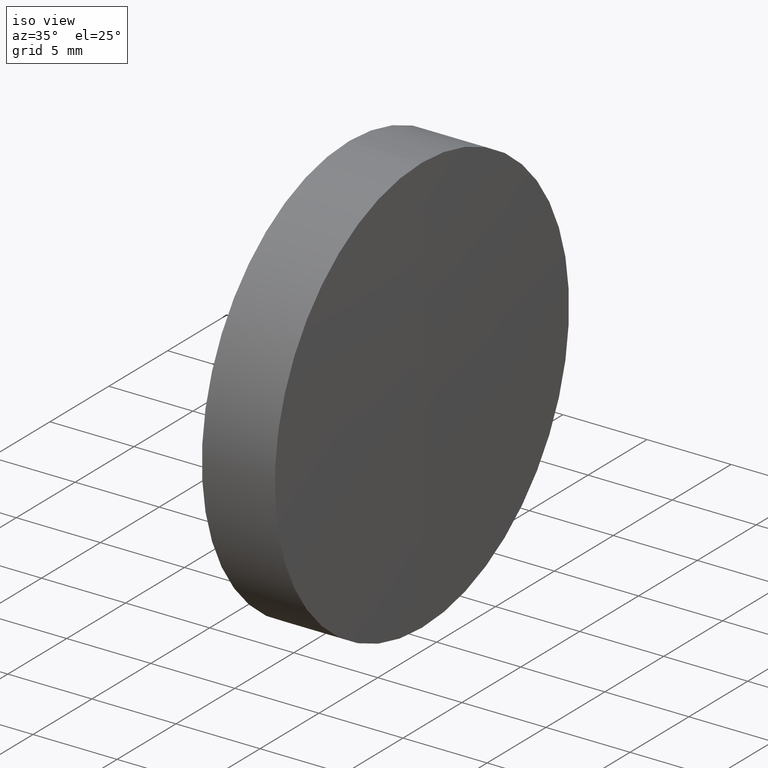
[diagram: clean part render]
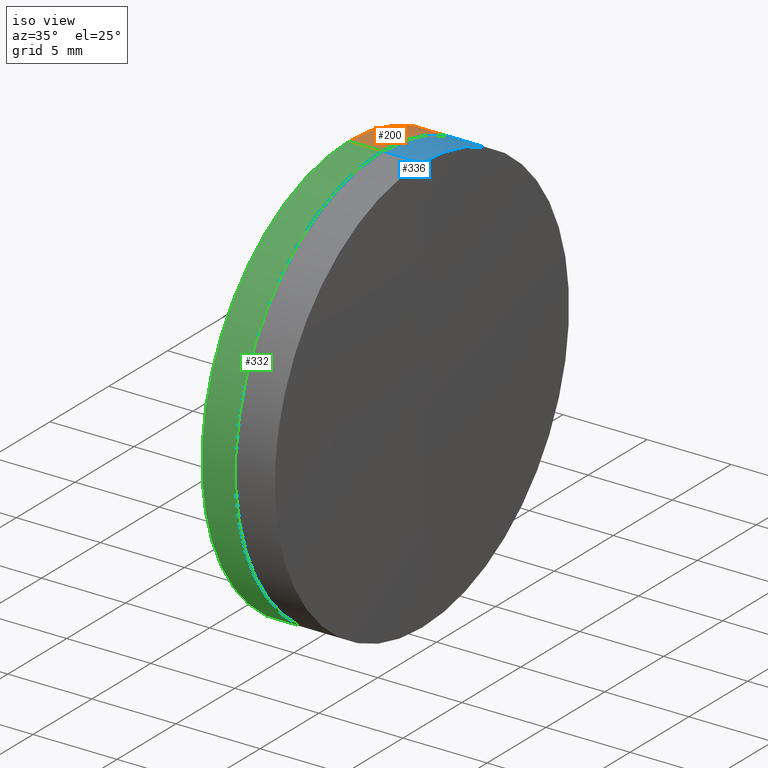
[diagram: same view with three faces highlighted in distinct colors, each labeled with its STEP entity id]
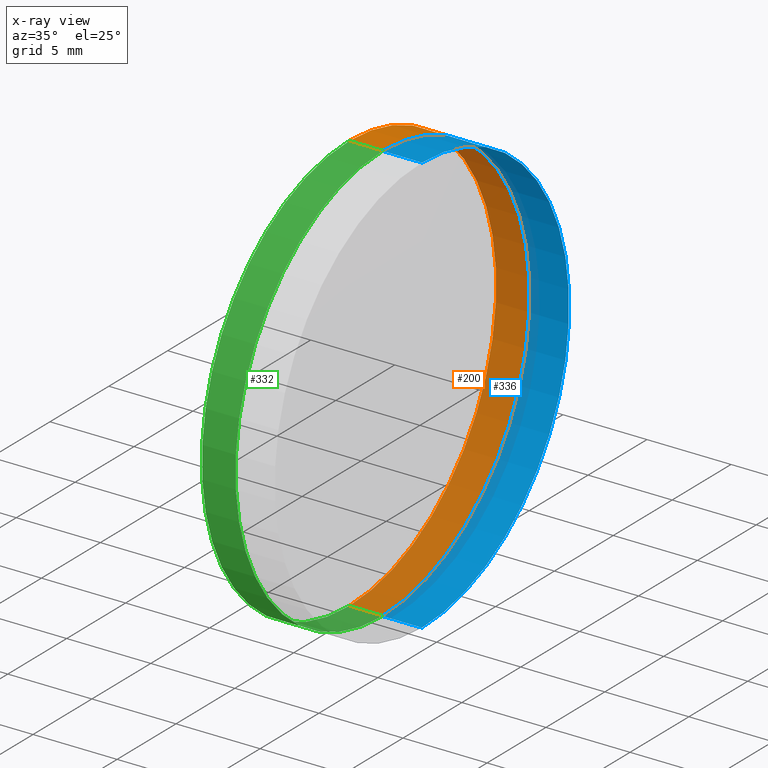
[diagram: x-ray of the same camera — body ghosted, the three highlighted faces saturated]
A machine part, iso view with three faces highlighted in distinct colors.
The next image is the same camera in x-ray (body ghosted, the three faces saturated) — at least one of them is partly hidden behind the body in this view.
Their STEP definitions:

[orange] entity #200 — the highlighted cylindrical surface (partial cylindrical patch) has radius 12.5 mm, axis along (-1, -0, -0).
#3 = VERTEX_POINT ( 'NONE', #94 ) ;
#5 = ORIENTED_EDGE ( 'NONE', *, *, #120, .T. ) ;
#10 = CARTESIAN_POINT ( 'NONE',  ( -9.702612178336682500, 1.530808498934191500E-015, -12.50000000000000000 ) ) ;
#13 = DIRECTION ( 'NONE',  ( -1.000000000000000000, -0.0000000000000000000, -0.0000000000000000000 ) ) ;
#14 = VECTOR ( 'NONE', #13, 1000.000000000000000 ) ;
#16 = CYLINDRICAL_SURFACE ( 'NONE', #206, 12.50000000000000000 ) ;
#21 = EDGE_CURVE ( 'NONE', #201, #3, #284, .T. ) ;
#26 = EDGE_CURVE ( 'NONE', #3, #102, #48, .T. ) ;
#48 = CIRCLE ( 'NONE', #222, 12.49999999999999800 ) ;
#51 = CIRCLE ( 'NONE', #136, 12.50000000000000000 ) ;
#58 = CARTESIAN_POINT ( 'NONE',  ( 176.7878593161265700, 1.530808498934191500E-015, -12.50000000000000000 ) ) ;
#61 = DIRECTION ( 'NONE',  ( -1.000000000000000000, -0.0000000000000000000, -0.0000000000000000000 ) ) ;
#84 = CARTESIAN_POINT ( 'NONE',  ( 174.7879218739749900, 1.530808498934200400E-015, -12.50000000000007300 ) ) ;
#90 = CARTESIAN_POINT ( 'NONE',  ( 174.7879218739749900, 0.0000000000000000000, 0.0000000000000000000 ) ) ;
#91 = DIRECTION ( 'NONE',  ( -1.000000000000000000, -0.0000000000000000000, -0.0000000000000000000 ) ) ;
#94 = CARTESIAN_POINT ( 'NONE',  ( 174.7879218739749900, 0.0000000000000000000, 12.50000000000007300 ) ) ;
#102 = VERTEX_POINT ( 'NONE', #84 ) ;
#120 = EDGE_CURVE ( 'NONE', #338, #102, #291, .T. ) ;
#136 = AXIS2_PLACEMENT_3D ( 'NONE', #253, #61, #329 ) ;
#148 = DIRECTION ( 'NONE',  ( -1.000000000000000000, -0.0000000000000000000, -0.0000000000000000000 ) ) ;
#166 = ORIENTED_EDGE ( 'NONE', *, *, #21, .F. ) ;
#200 = ADVANCED_FACE ( 'NONE', ( #211 ), #16, .T. ) ;
#201 = VERTEX_POINT ( 'NONE', #330 ) ;
#206 = AXIS2_PLACEMENT_3D ( 'NONE', #221, #307, #325 ) ;
#211 = FACE_OUTER_BOUND ( 'NONE', #312, .T. ) ;
#221 = CARTESIAN_POINT ( 'NONE',  ( -9.702612178336682500, 0.0000000000000000000, 0.0000000000000000000 ) ) ;
#222 = AXIS2_PLACEMENT_3D ( 'NONE', #90, #91, #313 ) ;
#233 = ORIENTED_EDGE ( 'NONE', *, *, #26, .F. ) ;
#253 = CARTESIAN_POINT ( 'NONE',  ( 176.7878593161265700, 0.0000000000000000000, 0.0000000000000000000 ) ) ;
#273 = VECTOR ( 'NONE', #148, 1000.000000000000000 ) ;
#278 = EDGE_CURVE ( 'NONE', #201, #338, #51, .T. ) ;
#284 = LINE ( 'NONE', #342, #273 ) ;
#291 = LINE ( 'NONE', #10, #14 ) ;
#292 = ORIENTED_EDGE ( 'NONE', *, *, #278, .T. ) ;
#307 = DIRECTION ( 'NONE',  ( -1.000000000000000000, -0.0000000000000000000, -0.0000000000000000000 ) ) ;
#312 = EDGE_LOOP ( 'NONE', ( #292, #5, #233, #166 ) ) ;
#313 = DIRECTION ( 'NONE',  ( 0.0000000000000000000, 0.0000000000000000000, 1.000000000000000000 ) ) ;
#325 = DIRECTION ( 'NONE',  ( 0.0000000000000000000, 0.0000000000000000000, 1.000000000000000000 ) ) ;
#329 = DIRECTION ( 'NONE',  ( 0.0000000000000000000, 0.0000000000000000000, 1.000000000000000000 ) ) ;
#330 = CARTESIAN_POINT ( 'NONE',  ( 176.7878593161265700, 0.0000000000000000000, 12.50000000000000000 ) ) ;
#338 = VERTEX_POINT ( 'NONE', #58 ) ;
#342 = CARTESIAN_POINT ( 'NONE',  ( -9.702612178336682500, 0.0000000000000000000, 12.50000000000000000 ) ) ;

[blue] entity #336 — the highlighted cylindrical surface (partial cylindrical patch) has radius 12.5 mm, axis along (-1, -0, -0).
#7 = CARTESIAN_POINT ( 'NONE',  ( 176.7878593161265700, 1.530808498934198400E-015, -12.50000000000005700 ) ) ;
#9 = ORIENTED_EDGE ( 'NONE', *, *, #227, .T. ) ;
#11 = DIRECTION ( 'NONE',  ( -1.000000000000000000, -0.0000000000000000000, -0.0000000000000000000 ) ) ;
#38 = CARTESIAN_POINT ( 'NONE',  ( 176.7878593161265700, 0.0000000000000000000, 12.50000000000005700 ) ) ;
#41 = ORIENTED_EDGE ( 'NONE', *, *, #103, .T. ) ;
#49 = VERTEX_POINT ( 'NONE', #38 ) ;
#50 = DIRECTION ( 'NONE',  ( -1.000000000000000000, -0.0000000000000000000, -0.0000000000000000000 ) ) ;
#67 = CYLINDRICAL_SURFACE ( 'NONE', #80, 12.50000000000005700 ) ;
#80 = AXIS2_PLACEMENT_3D ( 'NONE', #218, #209, #128 ) ;
#83 = FACE_OUTER_BOUND ( 'NONE', #177, .T. ) ;
#87 = VECTOR ( 'NONE', #11, 1000.000000000000000 ) ;
#88 = CARTESIAN_POINT ( 'NONE',  ( -0.5519199926577972300, 1.530808498934198400E-015, -12.50000000000005700 ) ) ;
#103 = EDGE_CURVE ( 'NONE', #281, #220, #300, .T. ) ;
#106 = VECTOR ( 'NONE', #50, 1000.000000000000000 ) ;
#114 = ORIENTED_EDGE ( 'NONE', *, *, #142, .F. ) ;
#125 = CARTESIAN_POINT ( 'NONE',  ( -0.5519199926577972300, 0.0000000000000000000, 12.50000000000005700 ) ) ;
#126 = DIRECTION ( 'NONE',  ( -1.000000000000000000, -0.0000000000000000000, -0.0000000000000000000 ) ) ;
#128 = DIRECTION ( 'NONE',  ( 0.0000000000000000000, 0.0000000000000000000, 1.000000000000000000 ) ) ;
#131 = VERTEX_POINT ( 'NONE', #203 ) ;
#140 = DIRECTION ( 'NONE',  ( 0.0000000000000000000, 0.0000000000000000000, 1.000000000000000000 ) ) ;
#142 = EDGE_CURVE ( 'NONE', #131, #49, #280, .T. ) ;
#144 = EDGE_CURVE ( 'NONE', #49, #220, #219, .T. ) ;
#177 = EDGE_LOOP ( 'NONE', ( #9, #41, #337, #114 ) ) ;
#181 = CARTESIAN_POINT ( 'NONE',  ( 179.1238445691506900, 0.0000000000000000000, 0.0000000000000000000 ) ) ;
#203 = CARTESIAN_POINT ( 'NONE',  ( 179.1238445691506900, 0.0000000000000000000, 12.50000000000000900 ) ) ;
#209 = DIRECTION ( 'NONE',  ( -1.000000000000000000, -0.0000000000000000000, -0.0000000000000000000 ) ) ;
#218 = CARTESIAN_POINT ( 'NONE',  ( -0.5519199926577972300, 0.0000000000000000000, 0.0000000000000000000 ) ) ;
#219 = CIRCLE ( 'NONE', #311, 12.50000000000010300 ) ;
#220 = VERTEX_POINT ( 'NONE', #7 ) ;
#227 = EDGE_CURVE ( 'NONE', #131, #281, #279, .T. ) ;
#228 = CARTESIAN_POINT ( 'NONE',  ( 176.7878593161265700, 0.0000000000000000000, 0.0000000000000000000 ) ) ;
#238 = CARTESIAN_POINT ( 'NONE',  ( 179.1238445691506900, 1.530808498934195700E-015, -12.50000000000000900 ) ) ;
#268 = DIRECTION ( 'NONE',  ( -1.000000000000000000, -0.0000000000000000000, -0.0000000000000000000 ) ) ;
#279 = CIRCLE ( 'NONE', #322, 12.50000000000000900 ) ;
#280 = LINE ( 'NONE', #125, #87 ) ;
#281 = VERTEX_POINT ( 'NONE', #238 ) ;
#300 = LINE ( 'NONE', #88, #106 ) ;
#311 = AXIS2_PLACEMENT_3D ( 'NONE', #228, #268, #321 ) ;
#321 = DIRECTION ( 'NONE',  ( 0.0000000000000000000, 0.0000000000000000000, 1.000000000000000000 ) ) ;
#322 = AXIS2_PLACEMENT_3D ( 'NONE', #181, #126, #140 ) ;
#336 = ADVANCED_FACE ( 'NONE', ( #83 ), #67, .T. ) ;
#337 = ORIENTED_EDGE ( 'NONE', *, *, #144, .F. ) ;

[green] entity #332 — the highlighted cylindrical surface (partial cylindrical patch) has radius 12.5 mm, axis along (-1, -0, -0).
#3 = VERTEX_POINT ( 'NONE', #94 ) ;
#10 = CARTESIAN_POINT ( 'NONE',  ( -9.702612178336682500, 1.530808498934191500E-015, -12.50000000000000000 ) ) ;
#13 = DIRECTION ( 'NONE',  ( -1.000000000000000000, -0.0000000000000000000, -0.0000000000000000000 ) ) ;
#14 = VECTOR ( 'NONE', #13, 1000.000000000000000 ) ;
#18 = CARTESIAN_POINT ( 'NONE',  ( -9.702612178336682500, 0.0000000000000000000, 0.0000000000000000000 ) ) ;
#21 = EDGE_CURVE ( 'NONE', #201, #3, #284, .T. ) ;
#40 = EDGE_LOOP ( 'NONE', ( #296, #100, #207, #267 ) ) ;
#58 = CARTESIAN_POINT ( 'NONE',  ( 176.7878593161265700, 1.530808498934191500E-015, -12.50000000000000000 ) ) ;
#69 = DIRECTION ( 'NONE',  ( -1.000000000000000000, -0.0000000000000000000, -0.0000000000000000000 ) ) ;
#79 = CIRCLE ( 'NONE', #180, 12.49999999999999800 ) ;
#84 = CARTESIAN_POINT ( 'NONE',  ( 174.7879218739749900, 1.530808498934200400E-015, -12.50000000000007300 ) ) ;
#94 = CARTESIAN_POINT ( 'NONE',  ( 174.7879218739749900, 0.0000000000000000000, 12.50000000000007300 ) ) ;
#100 = ORIENTED_EDGE ( 'NONE', *, *, #304, .T. ) ;
#102 = VERTEX_POINT ( 'NONE', #84 ) ;
#120 = EDGE_CURVE ( 'NONE', #338, #102, #291, .T. ) ;
#147 = DIRECTION ( 'NONE',  ( 0.0000000000000000000, 0.0000000000000000000, 1.000000000000000000 ) ) ;
#148 = DIRECTION ( 'NONE',  ( -1.000000000000000000, -0.0000000000000000000, -0.0000000000000000000 ) ) ;
#150 = AXIS2_PLACEMENT_3D ( 'NONE', #341, #250, #147 ) ;
#153 = CIRCLE ( 'NONE', #150, 12.50000000000000000 ) ;
#157 = DIRECTION ( 'NONE',  ( -1.000000000000000000, -0.0000000000000000000, -0.0000000000000000000 ) ) ;
#180 = AXIS2_PLACEMENT_3D ( 'NONE', #224, #157, #345 ) ;
#187 = AXIS2_PLACEMENT_3D ( 'NONE', #18, #69, #239 ) ;
#201 = VERTEX_POINT ( 'NONE', #330 ) ;
#205 = FACE_OUTER_BOUND ( 'NONE', #40, .T. ) ;
#207 = ORIENTED_EDGE ( 'NONE', *, *, #21, .T. ) ;
#224 = CARTESIAN_POINT ( 'NONE',  ( 174.7879218739749900, 0.0000000000000000000, 0.0000000000000000000 ) ) ;
#239 = DIRECTION ( 'NONE',  ( 0.0000000000000000000, 0.0000000000000000000, 1.000000000000000000 ) ) ;
#250 = DIRECTION ( 'NONE',  ( -1.000000000000000000, -0.0000000000000000000, -0.0000000000000000000 ) ) ;
#260 = CYLINDRICAL_SURFACE ( 'NONE', #187, 12.50000000000000000 ) ;
#267 = ORIENTED_EDGE ( 'NONE', *, *, #272, .F. ) ;
#272 = EDGE_CURVE ( 'NONE', #102, #3, #79, .T. ) ;
#273 = VECTOR ( 'NONE', #148, 1000.000000000000000 ) ;
#284 = LINE ( 'NONE', #342, #273 ) ;
#291 = LINE ( 'NONE', #10, #14 ) ;
#296 = ORIENTED_EDGE ( 'NONE', *, *, #120, .F. ) ;
#304 = EDGE_CURVE ( 'NONE', #338, #201, #153, .T. ) ;
#330 = CARTESIAN_POINT ( 'NONE',  ( 176.7878593161265700, 0.0000000000000000000, 12.50000000000000000 ) ) ;
#332 = ADVANCED_FACE ( 'NONE', ( #205 ), #260, .T. ) ;
#338 = VERTEX_POINT ( 'NONE', #58 ) ;
#341 = CARTESIAN_POINT ( 'NONE',  ( 176.7878593161265700, 0.0000000000000000000, 0.0000000000000000000 ) ) ;
#342 = CARTESIAN_POINT ( 'NONE',  ( -9.702612178336682500, 0.0000000000000000000, 12.50000000000000000 ) ) ;
#345 = DIRECTION ( 'NONE',  ( 0.0000000000000000000, 0.0000000000000000000, 1.000000000000000000 ) ) ;